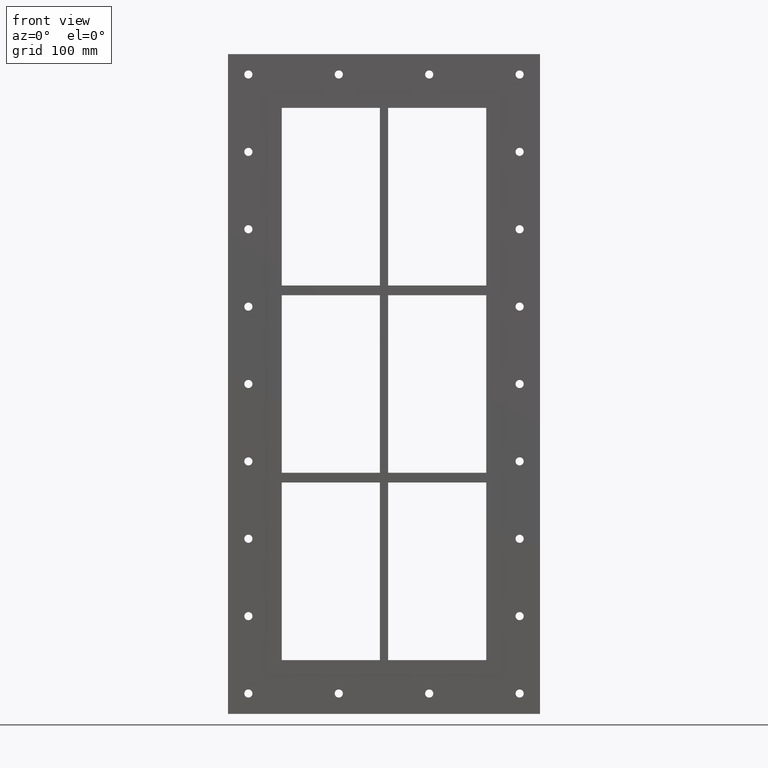
[diagram: clean part render]
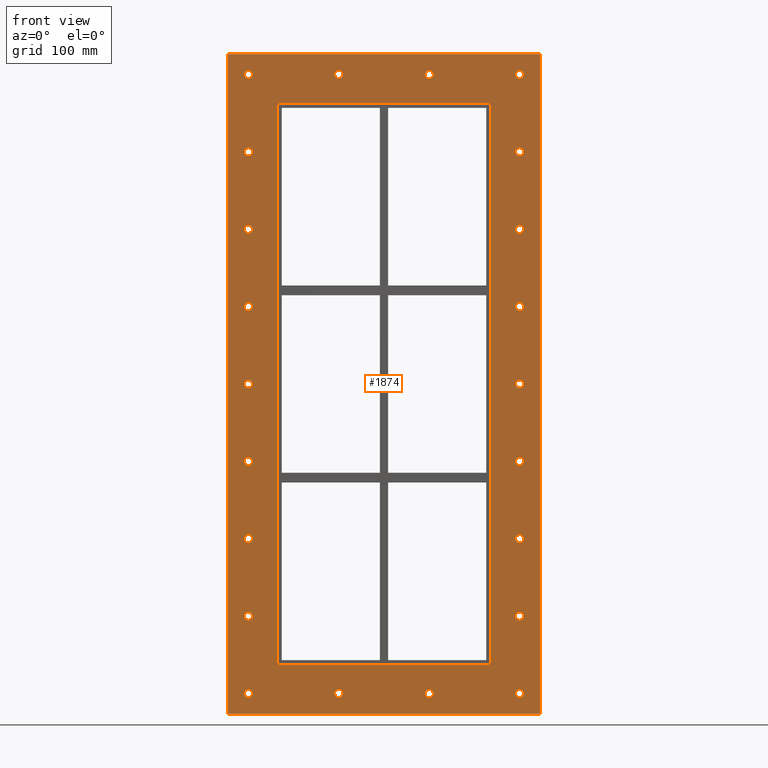
[diagram: same view with one face highlighted and labeled with its STEP entity id]
A machine part, front view. The second image highlights one B-rep face of the part: STEP entity #1874.
In plain terms, the highlighted planar face has unit normal (0, 1, 0).
Its self-contained STEP definition (entity closure, byte-faithful):
#84=CARTESIAN_POINT('',(-161.50000000000003,0.0,-380.00000000000006));
#85=VERTEX_POINT('',#84);
#86=CARTESIAN_POINT('',(-166.50000000000003,0.0,-380.00000000000006));
#87=DIRECTION('',(0.0,1.0,0.0));
#88=DIRECTION('',(1.0,0.0,0.0));
#89=AXIS2_PLACEMENT_3D('',#86,#87,#88);
#90=CIRCLE('',#89,5.0);
#91=EDGE_CURVE('',#85,#85,#90,.T.);
#112=CARTESIAN_POINT('',(171.50000000000003,0.0,-285.00000000000006));
#113=VERTEX_POINT('',#112);
#114=CARTESIAN_POINT('',(166.50000000000003,0.0,-285.00000000000006));
#115=DIRECTION('',(0.0,1.0,0.0));
#116=DIRECTION('',(1.0,0.0,0.0));
#117=AXIS2_PLACEMENT_3D('',#114,#115,#116);
#118=CIRCLE('',#117,5.0);
#119=EDGE_CURVE('',#113,#113,#118,.T.);
#140=CARTESIAN_POINT('',(-161.50000000000003,0.0,-285.00000000000006));
#141=VERTEX_POINT('',#140);
#142=CARTESIAN_POINT('',(-166.50000000000003,0.0,-285.00000000000006));
#143=DIRECTION('',(0.0,1.0,0.0));
#144=DIRECTION('',(1.0,0.0,0.0));
#145=AXIS2_PLACEMENT_3D('',#142,#143,#144);
#146=CIRCLE('',#145,5.0);
#147=EDGE_CURVE('',#141,#141,#146,.T.);
#168=CARTESIAN_POINT('',(171.50000000000003,0.0,-190.00000000000006));
#169=VERTEX_POINT('',#168);
#170=CARTESIAN_POINT('',(166.50000000000003,0.0,-190.00000000000006));
#171=DIRECTION('',(0.0,1.0,0.0));
#172=DIRECTION('',(1.0,0.0,0.0));
#173=AXIS2_PLACEMENT_3D('',#170,#171,#172);
#174=CIRCLE('',#173,5.0);
#175=EDGE_CURVE('',#169,#169,#174,.T.);
#196=CARTESIAN_POINT('',(-161.50000000000003,0.0,-190.00000000000006));
#197=VERTEX_POINT('',#196);
#198=CARTESIAN_POINT('',(-166.50000000000003,0.0,-190.00000000000006));
#199=DIRECTION('',(0.0,1.0,0.0));
#200=DIRECTION('',(1.0,0.0,0.0));
#201=AXIS2_PLACEMENT_3D('',#198,#199,#200);
#202=CIRCLE('',#201,5.0);
#203=EDGE_CURVE('',#197,#197,#202,.T.);
#224=CARTESIAN_POINT('',(171.50000000000003,0.0,-95.000000000000071));
#225=VERTEX_POINT('',#224);
#226=CARTESIAN_POINT('',(166.50000000000003,0.0,-95.000000000000071));
#227=DIRECTION('',(0.0,1.0,0.0));
#228=DIRECTION('',(1.0,0.0,0.0));
#229=AXIS2_PLACEMENT_3D('',#226,#227,#228);
#230=CIRCLE('',#229,5.0);
#231=EDGE_CURVE('',#225,#225,#230,.T.);
#252=CARTESIAN_POINT('',(-161.50000000000003,0.0,-95.000000000000071));
#253=VERTEX_POINT('',#252);
#254=CARTESIAN_POINT('',(-166.50000000000003,0.0,-95.000000000000071));
#255=DIRECTION('',(0.0,1.0,0.0));
#256=DIRECTION('',(1.0,0.0,0.0));
#257=AXIS2_PLACEMENT_3D('',#254,#255,#256);
#258=CIRCLE('',#257,5.0);
#259=EDGE_CURVE('',#253,#253,#258,.T.);
#280=CARTESIAN_POINT('',(171.50000000000003,0.0,-7.105427E-014));
#281=VERTEX_POINT('',#280);
#282=CARTESIAN_POINT('',(166.50000000000003,0.0,-7.105427E-014));
#283=DIRECTION('',(0.0,1.0,0.0));
#284=DIRECTION('',(1.0,0.0,0.0));
#285=AXIS2_PLACEMENT_3D('',#282,#283,#284);
#286=CIRCLE('',#285,5.0);
#287=EDGE_CURVE('',#281,#281,#286,.T.);
#308=CARTESIAN_POINT('',(-161.50000000000003,0.0,-7.105427E-014));
#309=VERTEX_POINT('',#308);
#310=CARTESIAN_POINT('',(-166.50000000000003,0.0,-7.105427E-014));
#311=DIRECTION('',(0.0,1.0,0.0));
#312=DIRECTION('',(1.0,0.0,0.0));
#313=AXIS2_PLACEMENT_3D('',#310,#311,#312);
#314=CIRCLE('',#313,5.0);
#315=EDGE_CURVE('',#309,#309,#314,.T.);
#336=CARTESIAN_POINT('',(171.50000000000003,0.0,94.999999999999929));
#337=VERTEX_POINT('',#336);
#338=CARTESIAN_POINT('',(166.50000000000003,0.0,94.999999999999929));
#339=DIRECTION('',(0.0,1.0,0.0));
#340=DIRECTION('',(1.0,0.0,0.0));
#341=AXIS2_PLACEMENT_3D('',#338,#339,#340);
#342=CIRCLE('',#341,5.0);
#343=EDGE_CURVE('',#337,#337,#342,.T.);
#364=CARTESIAN_POINT('',(-161.50000000000003,0.0,94.999999999999929));
#365=VERTEX_POINT('',#364);
#366=CARTESIAN_POINT('',(-166.50000000000003,0.0,94.999999999999929));
#367=DIRECTION('',(0.0,1.0,0.0));
#368=DIRECTION('',(1.0,0.0,0.0));
#369=AXIS2_PLACEMENT_3D('',#366,#367,#368);
#370=CIRCLE('',#369,5.0);
#371=EDGE_CURVE('',#365,#365,#370,.T.);
#392=CARTESIAN_POINT('',(171.50000000000003,0.0,189.99999999999994));
#393=VERTEX_POINT('',#392);
#394=CARTESIAN_POINT('',(166.50000000000003,0.0,189.99999999999994));
#395=DIRECTION('',(0.0,1.0,0.0));
#396=DIRECTION('',(1.0,0.0,0.0));
#397=AXIS2_PLACEMENT_3D('',#394,#395,#396);
#398=CIRCLE('',#397,5.0);
#399=EDGE_CURVE('',#393,#393,#398,.T.);
#420=CARTESIAN_POINT('',(-161.50000000000003,0.0,189.99999999999994));
#421=VERTEX_POINT('',#420);
#422=CARTESIAN_POINT('',(-166.50000000000003,0.0,189.99999999999994));
#423=DIRECTION('',(0.0,1.0,0.0));
#424=DIRECTION('',(1.0,0.0,0.0));
#425=AXIS2_PLACEMENT_3D('',#422,#423,#424);
#426=CIRCLE('',#425,5.0);
#427=EDGE_CURVE('',#421,#421,#426,.T.);
#448=CARTESIAN_POINT('',(171.50000000000003,0.0,284.99999999999994));
#449=VERTEX_POINT('',#448);
#450=CARTESIAN_POINT('',(166.50000000000003,0.0,284.99999999999994));
#451=DIRECTION('',(0.0,1.0,0.0));
#452=DIRECTION('',(1.0,0.0,0.0));
#453=AXIS2_PLACEMENT_3D('',#450,#451,#452);
#454=CIRCLE('',#453,5.0);
#455=EDGE_CURVE('',#449,#449,#454,.T.);
#476=CARTESIAN_POINT('',(-161.50000000000003,0.0,284.99999999999994));
#477=VERTEX_POINT('',#476);
#478=CARTESIAN_POINT('',(-166.50000000000003,0.0,284.99999999999994));
#479=DIRECTION('',(0.0,1.0,0.0));
#480=DIRECTION('',(1.0,0.0,0.0));
#481=AXIS2_PLACEMENT_3D('',#478,#479,#480);
#482=CIRCLE('',#481,5.0);
#483=EDGE_CURVE('',#477,#477,#482,.T.);
#504=CARTESIAN_POINT('',(-50.500000000000007,0.0,379.99999999999994));
#505=VERTEX_POINT('',#504);
#506=CARTESIAN_POINT('',(-55.500000000000007,0.0,379.99999999999994));
#507=DIRECTION('',(0.0,1.0,0.0));
#508=DIRECTION('',(1.0,0.0,0.0));
#509=AXIS2_PLACEMENT_3D('',#506,#507,#508);
#510=CIRCLE('',#509,5.0);
#511=EDGE_CURVE('',#505,#505,#510,.T.);
#532=CARTESIAN_POINT('',(-50.500000000000007,0.0,-380.00000000000006));
#533=VERTEX_POINT('',#532);
#534=CARTESIAN_POINT('',(-55.500000000000007,0.0,-380.00000000000006));
#535=DIRECTION('',(0.0,1.0,0.0));
#536=DIRECTION('',(1.0,0.0,0.0));
#537=AXIS2_PLACEMENT_3D('',#534,#535,#536);
#538=CIRCLE('',#537,5.0);
#539=EDGE_CURVE('',#533,#533,#538,.T.);
#560=CARTESIAN_POINT('',(60.500000000000007,0.0,379.99999999999994));
#561=VERTEX_POINT('',#560);
#562=CARTESIAN_POINT('',(55.500000000000007,0.0,379.99999999999994));
#563=DIRECTION('',(0.0,1.0,0.0));
#564=DIRECTION('',(1.0,0.0,0.0));
#565=AXIS2_PLACEMENT_3D('',#562,#563,#564);
#566=CIRCLE('',#565,5.0);
#567=EDGE_CURVE('',#561,#561,#566,.T.);
#588=CARTESIAN_POINT('',(60.500000000000007,0.0,-380.00000000000006));
#589=VERTEX_POINT('',#588);
#590=CARTESIAN_POINT('',(55.500000000000007,0.0,-380.00000000000006));
#591=DIRECTION('',(0.0,1.0,0.0));
#592=DIRECTION('',(1.0,0.0,0.0));
#593=AXIS2_PLACEMENT_3D('',#590,#591,#592);
#594=CIRCLE('',#593,5.0);
#595=EDGE_CURVE('',#589,#589,#594,.T.);
#616=CARTESIAN_POINT('',(171.50000000000003,0.0,-380.00000000000006));
#617=VERTEX_POINT('',#616);
#618=CARTESIAN_POINT('',(166.50000000000003,0.0,-380.00000000000006));
#619=DIRECTION('',(0.0,1.0,0.0));
#620=DIRECTION('',(1.0,0.0,0.0));
#621=AXIS2_PLACEMENT_3D('',#618,#619,#620);
#622=CIRCLE('',#621,5.0);
#623=EDGE_CURVE('',#617,#617,#622,.T.);
#644=CARTESIAN_POINT('',(-161.50000000000003,0.0,379.99999999999994));
#645=VERTEX_POINT('',#644);
#646=CARTESIAN_POINT('',(-166.50000000000003,0.0,379.99999999999994));
#647=DIRECTION('',(0.0,1.0,0.0));
#648=DIRECTION('',(1.0,0.0,0.0));
#649=AXIS2_PLACEMENT_3D('',#646,#647,#648);
#650=CIRCLE('',#649,5.0);
#651=EDGE_CURVE('',#645,#645,#650,.T.);
#672=CARTESIAN_POINT('',(171.50000000000003,0.0,379.99999999999994));
#673=VERTEX_POINT('',#672);
#674=CARTESIAN_POINT('',(166.50000000000003,0.0,379.99999999999994));
#675=DIRECTION('',(0.0,1.0,0.0));
#676=DIRECTION('',(1.0,0.0,0.0));
#677=AXIS2_PLACEMENT_3D('',#674,#675,#676);
#678=CIRCLE('',#677,5.0);
#679=EDGE_CURVE('',#673,#673,#678,.T.);
#1699=CARTESIAN_POINT('',(0.0,0.0,0.0));
#1700=DIRECTION('',(0.0,1.0,0.0));
#1701=DIRECTION('',(0.0,0.0,1.0));
#1702=AXIS2_PLACEMENT_3D('',#1699,#1700,#1701);
#1703=PLANE('',#1702);
#1704=CARTESIAN_POINT('',(-191.5,0.0,405.00000000000006));
#1705=VERTEX_POINT('',#1704);
#1706=CARTESIAN_POINT('',(191.5,0.0,405.00000000000006));
#1707=VERTEX_POINT('',#1706);
#1708=CARTESIAN_POINT('',(-191.5,0.0,405.00000000000006));
#1709=DIRECTION('',(1.0,0.0,0.0));
#1710=VECTOR('',#1709,383.0);
#1711=LINE('',#1708,#1710);
#1712=EDGE_CURVE('',#1705,#1707,#1711,.T.);
#1713=ORIENTED_EDGE('',*,*,#1712,.F.);
#1714=CARTESIAN_POINT('',(-191.5,0.0,-405.00000000000006));
#1715=VERTEX_POINT('',#1714);
#1716=CARTESIAN_POINT('',(-191.5,0.0,-405.00000000000006));
#1717=DIRECTION('',(0.0,0.0,1.0));
#1718=VECTOR('',#1717,810.00000000000011);
#1719=LINE('',#1716,#1718);
#1720=EDGE_CURVE('',#1715,#1705,#1719,.T.);
#1721=ORIENTED_EDGE('',*,*,#1720,.F.);
#1722=CARTESIAN_POINT('',(191.5,0.0,-405.00000000000006));
#1723=VERTEX_POINT('',#1722);
#1724=CARTESIAN_POINT('',(191.5,0.0,-405.00000000000006));
#1725=DIRECTION('',(-1.0,0.0,0.0));
#1726=VECTOR('',#1725,383.0);
#1727=LINE('',#1724,#1726);
#1728=EDGE_CURVE('',#1723,#1715,#1727,.T.);
#1729=ORIENTED_EDGE('',*,*,#1728,.F.);
#1730=CARTESIAN_POINT('',(191.5,0.0,405.00000000000006));
#1731=DIRECTION('',(0.0,0.0,-1.0));
#1732=VECTOR('',#1731,810.00000000000011);
#1733=LINE('',#1730,#1732);
#1734=EDGE_CURVE('',#1707,#1723,#1733,.T.);
#1735=ORIENTED_EDGE('',*,*,#1734,.F.);
#1736=EDGE_LOOP('',(#1713,#1721,#1729,#1735));
#1737=FACE_OUTER_BOUND('',#1736,.T.);
#1738=ORIENTED_EDGE('',*,*,#91,.T.);
#1739=EDGE_LOOP('',(#1738));
#1740=FACE_BOUND('',#1739,.T.);
#1741=ORIENTED_EDGE('',*,*,#119,.T.);
#1742=EDGE_LOOP('',(#1741));
#1743=FACE_BOUND('',#1742,.T.);
#1744=ORIENTED_EDGE('',*,*,#147,.T.);
#1745=EDGE_LOOP('',(#1744));
#1746=FACE_BOUND('',#1745,.T.);
#1747=ORIENTED_EDGE('',*,*,#175,.T.);
#1748=EDGE_LOOP('',(#1747));
#1749=FACE_BOUND('',#1748,.T.);
#1750=ORIENTED_EDGE('',*,*,#203,.T.);
#1751=EDGE_LOOP('',(#1750));
#1752=FACE_BOUND('',#1751,.T.);
#1753=ORIENTED_EDGE('',*,*,#231,.T.);
#1754=EDGE_LOOP('',(#1753));
#1755=FACE_BOUND('',#1754,.T.);
#1756=ORIENTED_EDGE('',*,*,#259,.T.);
#1757=EDGE_LOOP('',(#1756));
#1758=FACE_BOUND('',#1757,.T.);
#1759=ORIENTED_EDGE('',*,*,#287,.T.);
#1760=EDGE_LOOP('',(#1759));
#1761=FACE_BOUND('',#1760,.T.);
#1762=ORIENTED_EDGE('',*,*,#315,.T.);
#1763=EDGE_LOOP('',(#1762));
#1764=FACE_BOUND('',#1763,.T.);
#1765=ORIENTED_EDGE('',*,*,#343,.T.);
#1766=EDGE_LOOP('',(#1765));
#1767=FACE_BOUND('',#1766,.T.);
#1768=ORIENTED_EDGE('',*,*,#371,.T.);
#1769=EDGE_LOOP('',(#1768));
#1770=FACE_BOUND('',#1769,.T.);
#1771=ORIENTED_EDGE('',*,*,#399,.T.);
#1772=EDGE_LOOP('',(#1771));
#1773=FACE_BOUND('',#1772,.T.);
#1774=ORIENTED_EDGE('',*,*,#427,.T.);
#1775=EDGE_LOOP('',(#1774));
#1776=FACE_BOUND('',#1775,.T.);
#1777=ORIENTED_EDGE('',*,*,#455,.T.);
#1778=EDGE_LOOP('',(#1777));
#1779=FACE_BOUND('',#1778,.T.);
#1780=ORIENTED_EDGE('',*,*,#483,.T.);
#1781=EDGE_LOOP('',(#1780));
#1782=FACE_BOUND('',#1781,.T.);
#1783=ORIENTED_EDGE('',*,*,#511,.T.);
#1784=EDGE_LOOP('',(#1783));
#1785=FACE_BOUND('',#1784,.T.);
#1786=ORIENTED_EDGE('',*,*,#539,.T.);
#1787=EDGE_LOOP('',(#1786));
#1788=FACE_BOUND('',#1787,.T.);
#1789=ORIENTED_EDGE('',*,*,#567,.T.);
#1790=EDGE_LOOP('',(#1789));
#1791=FACE_BOUND('',#1790,.T.);
#1792=ORIENTED_EDGE('',*,*,#595,.T.);
#1793=EDGE_LOOP('',(#1792));
#1794=FACE_BOUND('',#1793,.T.);
#1795=ORIENTED_EDGE('',*,*,#623,.T.);
#1796=EDGE_LOOP('',(#1795));
#1797=FACE_BOUND('',#1796,.T.);
#1798=ORIENTED_EDGE('',*,*,#651,.T.);
#1799=EDGE_LOOP('',(#1798));
#1800=FACE_BOUND('',#1799,.T.);
#1801=ORIENTED_EDGE('',*,*,#679,.T.);
#1802=EDGE_LOOP('',(#1801));
#1803=FACE_BOUND('',#1802,.T.);
#1804=CARTESIAN_POINT('',(-131.5,0.0,-339.00000000000006));
#1805=VERTEX_POINT('',#1804);
#1806=CARTESIAN_POINT('',(-125.5,0.0,-345.00000000000006));
#1807=VERTEX_POINT('',#1806);
#1808=CARTESIAN_POINT('',(-125.5,0.0,-339.00000000000006));
#1809=DIRECTION('',(0.0,-1.0,0.0));
#1810=DIRECTION('',(-0.707106781186552,0.0,-0.707106781186543));
#1811=AXIS2_PLACEMENT_3D('',#1808,#1809,#1810);
#1812=CIRCLE('',#1811,6.000000000000001);
#1813=EDGE_CURVE('',#1805,#1807,#1812,.T.);
#1814=ORIENTED_EDGE('',*,*,#1813,.F.);
#1815=CARTESIAN_POINT('',(-131.5,0.0,339.00000000000006));
#1816=VERTEX_POINT('',#1815);
#1817=CARTESIAN_POINT('',(-131.5,0.0,339.0));
#1818=DIRECTION('',(0.0,0.0,-1.0));
#1819=VECTOR('',#1818,678.0);
#1820=LINE('',#1817,#1819);
#1821=EDGE_CURVE('',#1816,#1805,#1820,.T.);
#1822=ORIENTED_EDGE('',*,*,#1821,.F.);
#1823=CARTESIAN_POINT('',(-125.5,0.0,345.00000000000006));
#1824=VERTEX_POINT('',#1823);
#1825=CARTESIAN_POINT('',(-125.5,0.0,339.00000000000006));
#1826=DIRECTION('',(0.0,-1.0,0.0));
#1827=DIRECTION('',(-0.707106781186552,0.0,0.707106781186543));
#1828=AXIS2_PLACEMENT_3D('',#1825,#1826,#1827);
#1829=CIRCLE('',#1828,6.000000000000001);
#1830=EDGE_CURVE('',#1824,#1816,#1829,.T.);
#1831=ORIENTED_EDGE('',*,*,#1830,.F.);
#1832=CARTESIAN_POINT('',(125.5,0.0,345.00000000000006));
#1833=VERTEX_POINT('',#1832);
#1834=CARTESIAN_POINT('',(125.5,0.0,345.00000000000006));
#1835=DIRECTION('',(-1.0,0.0,0.0));
#1836=VECTOR('',#1835,251.0);
#1837=LINE('',#1834,#1836);
#1838=EDGE_CURVE('',#1833,#1824,#1837,.T.);
#1839=ORIENTED_EDGE('',*,*,#1838,.F.);
#1840=CARTESIAN_POINT('',(131.5,0.0,339.00000000000006));
#1841=VERTEX_POINT('',#1840);
#1842=CARTESIAN_POINT('',(125.5,0.0,339.00000000000006));
#1843=DIRECTION('',(0.0,-1.0,0.0));
#1844=DIRECTION('',(0.707106781186552,0.0,0.707106781186543));
#1845=AXIS2_PLACEMENT_3D('',#1842,#1843,#1844);
#1846=CIRCLE('',#1845,6.000000000000001);
#1847=EDGE_CURVE('',#1841,#1833,#1846,.T.);
#1848=ORIENTED_EDGE('',*,*,#1847,.F.);
#1849=CARTESIAN_POINT('',(131.5,0.0,-339.00000000000006));
#1850=VERTEX_POINT('',#1849);
#1851=CARTESIAN_POINT('',(131.5,0.0,-339.0));
#1852=DIRECTION('',(0.0,0.0,1.0));
#1853=VECTOR('',#1852,678.0);
#1854=LINE('',#1851,#1853);
#1855=EDGE_CURVE('',#1850,#1841,#1854,.T.);
#1856=ORIENTED_EDGE('',*,*,#1855,.F.);
#1857=CARTESIAN_POINT('',(125.5,0.0,-345.00000000000006));
#1858=VERTEX_POINT('',#1857);
#1859=CARTESIAN_POINT('',(125.5,0.0,-339.00000000000006));
#1860=DIRECTION('',(0.0,-1.0,0.0));
#1861=DIRECTION('',(0.707106781186552,0.0,-0.707106781186543));
#1862=AXIS2_PLACEMENT_3D('',#1859,#1860,#1861);
#1863=CIRCLE('',#1862,6.000000000000001);
#1864=EDGE_CURVE('',#1858,#1850,#1863,.T.);
#1865=ORIENTED_EDGE('',*,*,#1864,.F.);
#1866=CARTESIAN_POINT('',(-125.5,0.0,-345.00000000000006));
#1867=DIRECTION('',(1.0,0.0,0.0));
#1868=VECTOR('',#1867,251.0);
#1869=LINE('',#1866,#1868);
#1870=EDGE_CURVE('',#1807,#1858,#1869,.T.);
#1871=ORIENTED_EDGE('',*,*,#1870,.F.);
#1872=EDGE_LOOP('',(#1814,#1822,#1831,#1839,#1848,#1856,#1865,#1871));
#1873=FACE_BOUND('',#1872,.T.);
#1874=ADVANCED_FACE('',(#1737,#1740,#1743,#1746,#1749,#1752,#1755,#1758,#1761,#1764,#1767,#1770,#1773,#1776,#1779,#1782,#1785,#1788,#1791,#1794,#1797,#1800,#1803,#1873),#1703,.F.);